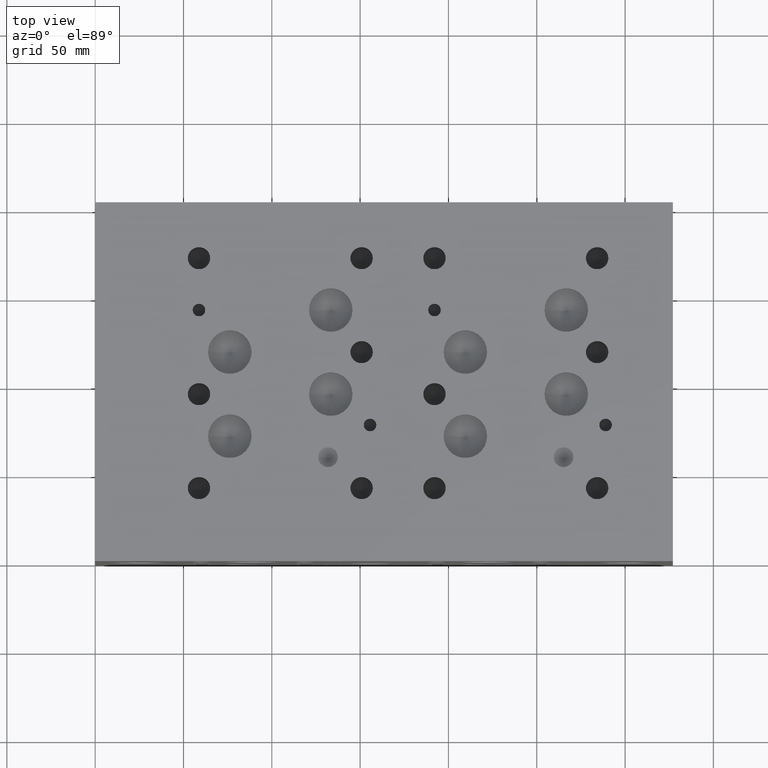
[diagram: clean part render]
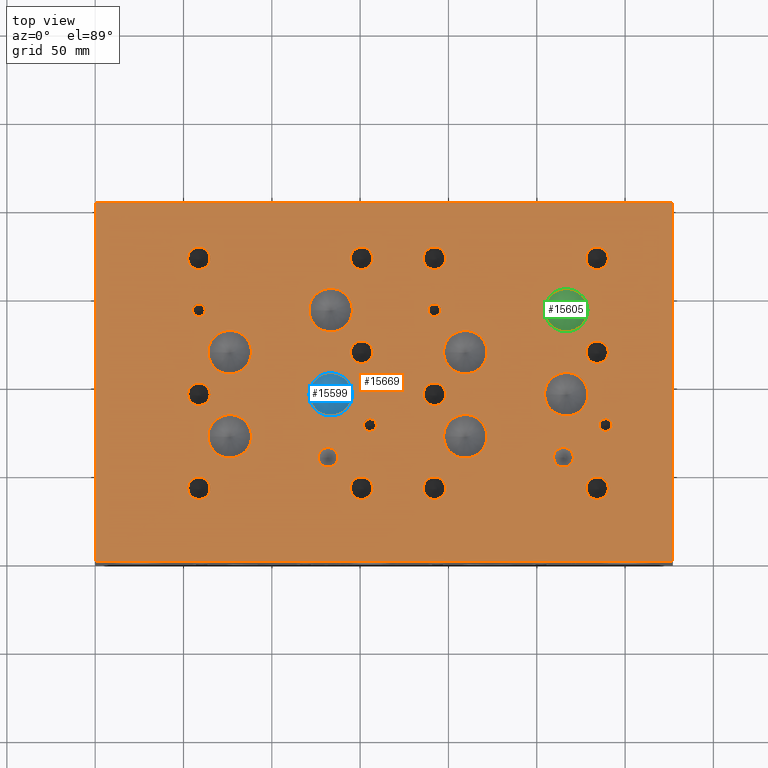
[diagram: same view with three faces highlighted in distinct colors, each labeled with its STEP entity id]
A machine part, top view with three faces highlighted in distinct colors.
Their STEP definitions:

[orange] entity #15669 — the highlighted planar face has unit normal (0, 0, 1).
#605=CIRCLE('',#16620,5.5626);
#606=CIRCLE('',#16621,5.5626);
#609=CIRCLE('',#16626,5.5626);
#610=CIRCLE('',#16627,5.5626);
#613=CIRCLE('',#16632,12.3063);
#614=CIRCLE('',#16633,12.3063);
#617=CIRCLE('',#16638,12.3063);
#618=CIRCLE('',#16639,12.3063);
#621=CIRCLE('',#16644,12.3063);
#622=CIRCLE('',#16645,12.3063);
#625=CIRCLE('',#16650,12.3063);
#626=CIRCLE('',#16651,12.3063);
#629=CIRCLE('',#16656,12.3063);
#630=CIRCLE('',#16657,12.3063);
#633=CIRCLE('',#16662,12.3063);
#634=CIRCLE('',#16663,12.3063);
#637=CIRCLE('',#16668,12.3063);
#638=CIRCLE('',#16669,12.3063);
#641=CIRCLE('',#16674,12.3063);
#642=CIRCLE('',#16675,12.3063);
#645=CIRCLE('',#16680,3.5687);
#646=CIRCLE('',#16681,3.5687);
#649=CIRCLE('',#16686,3.5687);
#650=CIRCLE('',#16687,3.5687);
#653=CIRCLE('',#16692,3.5687);
#654=CIRCLE('',#16693,3.5687);
#657=CIRCLE('',#16698,3.5687);
#658=CIRCLE('',#16699,3.5687);
#664=CIRCLE('',#16708,6.35);
#665=CIRCLE('',#16709,6.35);
#671=CIRCLE('',#16719,6.35);
#672=CIRCLE('',#16720,6.35);
#678=CIRCLE('',#16730,6.35);
#679=CIRCLE('',#16731,6.35);
#685=CIRCLE('',#16741,6.35);
#686=CIRCLE('',#16742,6.35);
#692=CIRCLE('',#16752,6.35);
#693=CIRCLE('',#16753,6.35);
#699=CIRCLE('',#16763,6.35);
#700=CIRCLE('',#16764,6.35);
#706=CIRCLE('',#16774,6.35);
#707=CIRCLE('',#16775,6.35);
#713=CIRCLE('',#16785,6.35);
#714=CIRCLE('',#16786,6.35);
#720=CIRCLE('',#16796,6.35);
#721=CIRCLE('',#16797,6.35);
#727=CIRCLE('',#16807,6.35);
#728=CIRCLE('',#16808,6.35);
#734=CIRCLE('',#16818,6.35);
#735=CIRCLE('',#16819,6.35);
#741=CIRCLE('',#16829,6.35);
#742=CIRCLE('',#16830,6.35);
#899=FACE_BOUND('',#3201,.T.);
#900=FACE_BOUND('',#3202,.T.);
#901=FACE_BOUND('',#3203,.T.);
#902=FACE_BOUND('',#3204,.T.);
#903=FACE_BOUND('',#3205,.T.);
#904=FACE_BOUND('',#3206,.T.);
#905=FACE_BOUND('',#3207,.T.);
#906=FACE_BOUND('',#3208,.T.);
#907=FACE_BOUND('',#3209,.T.);
#908=FACE_BOUND('',#3210,.T.);
#909=FACE_BOUND('',#3211,.T.);
#910=FACE_BOUND('',#3212,.T.);
#911=FACE_BOUND('',#3213,.T.);
#912=FACE_BOUND('',#3214,.T.);
#913=FACE_BOUND('',#3215,.T.);
#914=FACE_BOUND('',#3216,.T.);
#915=FACE_BOUND('',#3217,.T.);
#916=FACE_BOUND('',#3218,.T.);
#917=FACE_BOUND('',#3219,.T.);
#918=FACE_BOUND('',#3220,.T.);
#919=FACE_BOUND('',#3221,.T.);
#920=FACE_BOUND('',#3222,.T.);
#921=FACE_BOUND('',#3223,.T.);
#922=FACE_BOUND('',#3224,.T.);
#923=FACE_BOUND('',#3225,.T.);
#924=FACE_BOUND('',#3226,.T.);
#2231=FACE_OUTER_BOUND('',#3200,.T.);
#3200=EDGE_LOOP('',(#13865,#13866,#13867,#13868));
#3201=EDGE_LOOP('',(#13869,#13870));
#3202=EDGE_LOOP('',(#13871,#13872));
#3203=EDGE_LOOP('',(#13873,#13874));
#3204=EDGE_LOOP('',(#13875,#13876));
#3205=EDGE_LOOP('',(#13877,#13878));
#3206=EDGE_LOOP('',(#13879,#13880));
#3207=EDGE_LOOP('',(#13881,#13882));
#3208=EDGE_LOOP('',(#13883,#13884));
#3209=EDGE_LOOP('',(#13885,#13886));
#3210=EDGE_LOOP('',(#13887,#13888));
#3211=EDGE_LOOP('',(#13889,#13890));
#3212=EDGE_LOOP('',(#13891,#13892));
#3213=EDGE_LOOP('',(#13893,#13894));
#3214=EDGE_LOOP('',(#13895,#13896));
#3215=EDGE_LOOP('',(#13897,#13898));
#3216=EDGE_LOOP('',(#13899,#13900));
#3217=EDGE_LOOP('',(#13901,#13902));
#3218=EDGE_LOOP('',(#13903,#13904));
#3219=EDGE_LOOP('',(#13905,#13906));
#3220=EDGE_LOOP('',(#13907,#13908));
#3221=EDGE_LOOP('',(#13909,#13910));
#3222=EDGE_LOOP('',(#13911,#13912));
#3223=EDGE_LOOP('',(#13913,#13914));
#3224=EDGE_LOOP('',(#13915,#13916));
#3225=EDGE_LOOP('',(#13917,#13918));
#3226=EDGE_LOOP('',(#13919,#13920));
#3560=LINE('',#22840,#4891);
#4249=LINE('',#25328,#5580);
#4307=LINE('',#25631,#5638);
#4558=LINE('',#27134,#5889);
#4891=VECTOR('',#17352,10.);
#5580=VECTOR('',#18619,10.);
#5638=VECTOR('',#18763,10.);
#5889=VECTOR('',#20468,10.);
#6244=VERTEX_POINT('',#22837);
#6245=VERTEX_POINT('',#22839);
#6827=VERTEX_POINT('',#25326);
#6901=VERTEX_POINT('',#25630);
#7264=VERTEX_POINT('',#26693);
#7265=VERTEX_POINT('',#26694);
#7269=VERTEX_POINT('',#26706);
#7270=VERTEX_POINT('',#26707);
#7274=VERTEX_POINT('',#26719);
#7275=VERTEX_POINT('',#26720);
#7279=VERTEX_POINT('',#26732);
#7280=VERTEX_POINT('',#26733);
#7284=VERTEX_POINT('',#26745);
#7285=VERTEX_POINT('',#26746);
#7289=VERTEX_POINT('',#26758);
#7290=VERTEX_POINT('',#26759);
#7294=VERTEX_POINT('',#26771);
#7295=VERTEX_POINT('',#26772);
#7299=VERTEX_POINT('',#26784);
#7300=VERTEX_POINT('',#26785);
#7304=VERTEX_POINT('',#26797);
#7305=VERTEX_POINT('',#26798);
#7309=VERTEX_POINT('',#26810);
#7310=VERTEX_POINT('',#26811);
#7314=VERTEX_POINT('',#26823);
#7315=VERTEX_POINT('',#26824);
#7319=VERTEX_POINT('',#26836);
#7320=VERTEX_POINT('',#26837);
#7324=VERTEX_POINT('',#26849);
#7325=VERTEX_POINT('',#26850);
#7329=VERTEX_POINT('',#26862);
#7330=VERTEX_POINT('',#26863);
#7337=VERTEX_POINT('',#26882);
#7338=VERTEX_POINT('',#26883);
#7345=VERTEX_POINT('',#26904);
#7346=VERTEX_POINT('',#26905);
#7353=VERTEX_POINT('',#26926);
#7354=VERTEX_POINT('',#26927);
#7361=VERTEX_POINT('',#26948);
#7362=VERTEX_POINT('',#26949);
#7369=VERTEX_POINT('',#26970);
#7370=VERTEX_POINT('',#26971);
#7377=VERTEX_POINT('',#26992);
#7378=VERTEX_POINT('',#26993);
#7385=VERTEX_POINT('',#27014);
#7386=VERTEX_POINT('',#27015);
#7393=VERTEX_POINT('',#27036);
#7394=VERTEX_POINT('',#27037);
#7401=VERTEX_POINT('',#27058);
#7402=VERTEX_POINT('',#27059);
#7409=VERTEX_POINT('',#27080);
#7410=VERTEX_POINT('',#27081);
#7417=VERTEX_POINT('',#27102);
#7418=VERTEX_POINT('',#27103);
#7425=VERTEX_POINT('',#27124);
#7426=VERTEX_POINT('',#27125);
#7957=EDGE_CURVE('',#6245,#6244,#3560,.T.);
#8808=EDGE_CURVE('',#6244,#6827,#4249,.T.);
#8906=EDGE_CURVE('',#6901,#6245,#4307,.T.);
#9390=EDGE_CURVE('',#7264,#7265,#605,.T.);
#9391=EDGE_CURVE('',#7265,#7264,#606,.T.);
#9396=EDGE_CURVE('',#7269,#7270,#609,.T.);
#9397=EDGE_CURVE('',#7270,#7269,#610,.T.);
#9402=EDGE_CURVE('',#7274,#7275,#613,.T.);
#9403=EDGE_CURVE('',#7275,#7274,#614,.T.);
#9408=EDGE_CURVE('',#7279,#7280,#617,.T.);
#9409=EDGE_CURVE('',#7280,#7279,#618,.T.);
#9414=EDGE_CURVE('',#7284,#7285,#621,.T.);
#9415=EDGE_CURVE('',#7285,#7284,#622,.T.);
#9420=EDGE_CURVE('',#7289,#7290,#625,.T.);
#9421=EDGE_CURVE('',#7290,#7289,#626,.T.);
#9426=EDGE_CURVE('',#7294,#7295,#629,.T.);
#9427=EDGE_CURVE('',#7295,#7294,#630,.T.);
#9432=EDGE_CURVE('',#7299,#7300,#633,.T.);
#9433=EDGE_CURVE('',#7300,#7299,#634,.T.);
#9438=EDGE_CURVE('',#7304,#7305,#637,.T.);
#9439=EDGE_CURVE('',#7305,#7304,#638,.T.);
#9444=EDGE_CURVE('',#7309,#7310,#641,.T.);
#9445=EDGE_CURVE('',#7310,#7309,#642,.T.);
#9450=EDGE_CURVE('',#7314,#7315,#645,.T.);
#9451=EDGE_CURVE('',#7315,#7314,#646,.T.);
#9456=EDGE_CURVE('',#7319,#7320,#649,.T.);
#9457=EDGE_CURVE('',#7320,#7319,#650,.T.);
#9462=EDGE_CURVE('',#7324,#7325,#653,.T.);
#9463=EDGE_CURVE('',#7325,#7324,#654,.T.);
#9468=EDGE_CURVE('',#7329,#7330,#657,.T.);
#9469=EDGE_CURVE('',#7330,#7329,#658,.T.);
#9477=EDGE_CURVE('',#7337,#7338,#664,.T.);
#9478=EDGE_CURVE('',#7338,#7337,#665,.T.);
#9487=EDGE_CURVE('',#7345,#7346,#671,.T.);
#9488=EDGE_CURVE('',#7346,#7345,#672,.T.);
#9497=EDGE_CURVE('',#7353,#7354,#678,.T.);
#9498=EDGE_CURVE('',#7354,#7353,#679,.T.);
#9507=EDGE_CURVE('',#7361,#7362,#685,.T.);
#9508=EDGE_CURVE('',#7362,#7361,#686,.T.);
#9517=EDGE_CURVE('',#7369,#7370,#692,.T.);
#9518=EDGE_CURVE('',#7370,#7369,#693,.T.);
#9527=EDGE_CURVE('',#7377,#7378,#699,.T.);
#9528=EDGE_CURVE('',#7378,#7377,#700,.T.);
#9537=EDGE_CURVE('',#7385,#7386,#706,.T.);
#9538=EDGE_CURVE('',#7386,#7385,#707,.T.);
#9547=EDGE_CURVE('',#7393,#7394,#713,.T.);
#9548=EDGE_CURVE('',#7394,#7393,#714,.T.);
#9557=EDGE_CURVE('',#7401,#7402,#720,.T.);
#9558=EDGE_CURVE('',#7402,#7401,#721,.T.);
#9567=EDGE_CURVE('',#7409,#7410,#727,.T.);
#9568=EDGE_CURVE('',#7410,#7409,#728,.T.);
#9577=EDGE_CURVE('',#7417,#7418,#734,.T.);
#9578=EDGE_CURVE('',#7418,#7417,#735,.T.);
#9587=EDGE_CURVE('',#7425,#7426,#741,.T.);
#9588=EDGE_CURVE('',#7426,#7425,#742,.T.);
#9592=EDGE_CURVE('',#6827,#6901,#4558,.T.);
#13865=ORIENTED_EDGE('',*,*,#7957,.T.);
#13866=ORIENTED_EDGE('',*,*,#8808,.T.);
#13867=ORIENTED_EDGE('',*,*,#9592,.T.);
#13868=ORIENTED_EDGE('',*,*,#8906,.T.);
#13869=ORIENTED_EDGE('',*,*,#9390,.T.);
#13870=ORIENTED_EDGE('',*,*,#9391,.T.);
#13871=ORIENTED_EDGE('',*,*,#9396,.T.);
#13872=ORIENTED_EDGE('',*,*,#9397,.T.);
#13873=ORIENTED_EDGE('',*,*,#9402,.T.);
#13874=ORIENTED_EDGE('',*,*,#9403,.T.);
#13875=ORIENTED_EDGE('',*,*,#9408,.T.);
#13876=ORIENTED_EDGE('',*,*,#9409,.T.);
#13877=ORIENTED_EDGE('',*,*,#9414,.T.);
#13878=ORIENTED_EDGE('',*,*,#9415,.T.);
#13879=ORIENTED_EDGE('',*,*,#9420,.T.);
#13880=ORIENTED_EDGE('',*,*,#9421,.T.);
#13881=ORIENTED_EDGE('',*,*,#9426,.T.);
#13882=ORIENTED_EDGE('',*,*,#9427,.T.);
#13883=ORIENTED_EDGE('',*,*,#9432,.T.);
#13884=ORIENTED_EDGE('',*,*,#9433,.T.);
#13885=ORIENTED_EDGE('',*,*,#9438,.T.);
#13886=ORIENTED_EDGE('',*,*,#9439,.T.);
#13887=ORIENTED_EDGE('',*,*,#9444,.T.);
#13888=ORIENTED_EDGE('',*,*,#9445,.T.);
#13889=ORIENTED_EDGE('',*,*,#9450,.T.);
#13890=ORIENTED_EDGE('',*,*,#9451,.T.);
#13891=ORIENTED_EDGE('',*,*,#9456,.T.);
#13892=ORIENTED_EDGE('',*,*,#9457,.T.);
#13893=ORIENTED_EDGE('',*,*,#9462,.T.);
#13894=ORIENTED_EDGE('',*,*,#9463,.T.);
#13895=ORIENTED_EDGE('',*,*,#9468,.T.);
#13896=ORIENTED_EDGE('',*,*,#9469,.T.);
#13897=ORIENTED_EDGE('',*,*,#9477,.T.);
#13898=ORIENTED_EDGE('',*,*,#9478,.T.);
#13899=ORIENTED_EDGE('',*,*,#9487,.T.);
#13900=ORIENTED_EDGE('',*,*,#9488,.T.);
#13901=ORIENTED_EDGE('',*,*,#9497,.T.);
#13902=ORIENTED_EDGE('',*,*,#9498,.T.);
#13903=ORIENTED_EDGE('',*,*,#9507,.T.);
#13904=ORIENTED_EDGE('',*,*,#9508,.T.);
#13905=ORIENTED_EDGE('',*,*,#9517,.T.);
#13906=ORIENTED_EDGE('',*,*,#9518,.T.);
#13907=ORIENTED_EDGE('',*,*,#9527,.T.);
#13908=ORIENTED_EDGE('',*,*,#9528,.T.);
#13909=ORIENTED_EDGE('',*,*,#9537,.T.);
#13910=ORIENTED_EDGE('',*,*,#9538,.T.);
#13911=ORIENTED_EDGE('',*,*,#9547,.T.);
#13912=ORIENTED_EDGE('',*,*,#9548,.T.);
#13913=ORIENTED_EDGE('',*,*,#9557,.T.);
#13914=ORIENTED_EDGE('',*,*,#9558,.T.);
#13915=ORIENTED_EDGE('',*,*,#9567,.T.);
#13916=ORIENTED_EDGE('',*,*,#9568,.T.);
#13917=ORIENTED_EDGE('',*,*,#9577,.T.);
#13918=ORIENTED_EDGE('',*,*,#9578,.T.);
#13919=ORIENTED_EDGE('',*,*,#9587,.T.);
#13920=ORIENTED_EDGE('',*,*,#9588,.T.);
#14347=PLANE('',#16836);
#15669=ADVANCED_FACE('',(#2231,#899,#900,#901,#902,#903,#904,#905,#906,
#907,#908,#909,#910,#911,#912,#913,#914,#915,#916,#917,#918,#919,#920,#921,
#922,#923,#924),#14347,.T.);
#16620=AXIS2_PLACEMENT_3D('',#26695,#19976,#19977);
#16621=AXIS2_PLACEMENT_3D('',#26696,#19978,#19979);
#16626=AXIS2_PLACEMENT_3D('',#26708,#19990,#19991);
#16627=AXIS2_PLACEMENT_3D('',#26709,#19992,#19993);
#16632=AXIS2_PLACEMENT_3D('',#26721,#20004,#20005);
#16633=AXIS2_PLACEMENT_3D('',#26722,#20006,#20007);
#16638=AXIS2_PLACEMENT_3D('',#26734,#20018,#20019);
#16639=AXIS2_PLACEMENT_3D('',#26735,#20020,#20021);
#16644=AXIS2_PLACEMENT_3D('',#26747,#20032,#20033);
#16645=AXIS2_PLACEMENT_3D('',#26748,#20034,#20035);
#16650=AXIS2_PLACEMENT_3D('',#26760,#20046,#20047);
#16651=AXIS2_PLACEMENT_3D('',#26761,#20048,#20049);
#16656=AXIS2_PLACEMENT_3D('',#26773,#20060,#20061);
#16657=AXIS2_PLACEMENT_3D('',#26774,#20062,#20063);
#16662=AXIS2_PLACEMENT_3D('',#26786,#20074,#20075);
#16663=AXIS2_PLACEMENT_3D('',#26787,#20076,#20077);
#16668=AXIS2_PLACEMENT_3D('',#26799,#20088,#20089);
#16669=AXIS2_PLACEMENT_3D('',#26800,#20090,#20091);
#16674=AXIS2_PLACEMENT_3D('',#26812,#20102,#20103);
#16675=AXIS2_PLACEMENT_3D('',#26813,#20104,#20105);
#16680=AXIS2_PLACEMENT_3D('',#26825,#20116,#20117);
#16681=AXIS2_PLACEMENT_3D('',#26826,#20118,#20119);
#16686=AXIS2_PLACEMENT_3D('',#26838,#20130,#20131);
#16687=AXIS2_PLACEMENT_3D('',#26839,#20132,#20133);
#16692=AXIS2_PLACEMENT_3D('',#26851,#20144,#20145);
#16693=AXIS2_PLACEMENT_3D('',#26852,#20146,#20147);
#16698=AXIS2_PLACEMENT_3D('',#26864,#20158,#20159);
#16699=AXIS2_PLACEMENT_3D('',#26865,#20160,#20161);
#16708=AXIS2_PLACEMENT_3D('',#26884,#20180,#20181);
#16709=AXIS2_PLACEMENT_3D('',#26885,#20182,#20183);
#16719=AXIS2_PLACEMENT_3D('',#26906,#20205,#20206);
#16720=AXIS2_PLACEMENT_3D('',#26907,#20207,#20208);
#16730=AXIS2_PLACEMENT_3D('',#26928,#20230,#20231);
#16731=AXIS2_PLACEMENT_3D('',#26929,#20232,#20233);
#16741=AXIS2_PLACEMENT_3D('',#26950,#20255,#20256);
#16742=AXIS2_PLACEMENT_3D('',#26951,#20257,#20258);
#16752=AXIS2_PLACEMENT_3D('',#26972,#20280,#20281);
#16753=AXIS2_PLACEMENT_3D('',#26973,#20282,#20283);
#16763=AXIS2_PLACEMENT_3D('',#26994,#20305,#20306);
#16764=AXIS2_PLACEMENT_3D('',#26995,#20307,#20308);
#16774=AXIS2_PLACEMENT_3D('',#27016,#20330,#20331);
#16775=AXIS2_PLACEMENT_3D('',#27017,#20332,#20333);
#16785=AXIS2_PLACEMENT_3D('',#27038,#20355,#20356);
#16786=AXIS2_PLACEMENT_3D('',#27039,#20357,#20358);
#16796=AXIS2_PLACEMENT_3D('',#27060,#20380,#20381);
#16797=AXIS2_PLACEMENT_3D('',#27061,#20382,#20383);
#16807=AXIS2_PLACEMENT_3D('',#27082,#20405,#20406);
#16808=AXIS2_PLACEMENT_3D('',#27083,#20407,#20408);
#16818=AXIS2_PLACEMENT_3D('',#27104,#20430,#20431);
#16819=AXIS2_PLACEMENT_3D('',#27105,#20432,#20433);
#16829=AXIS2_PLACEMENT_3D('',#27126,#20455,#20456);
#16830=AXIS2_PLACEMENT_3D('',#27127,#20457,#20458);
#16836=AXIS2_PLACEMENT_3D('',#27137,#20473,#20474);
#17352=DIRECTION('',(1.,0.,0.));
#18619=DIRECTION('',(0.,1.,0.));
#18763=DIRECTION('',(0.,-1.,0.));
#19976=DIRECTION('center_axis',(0.,0.,-1.));
#19977=DIRECTION('ref_axis',(1.,0.,0.));
#19978=DIRECTION('center_axis',(0.,0.,-1.));
#19979=DIRECTION('ref_axis',(1.,0.,0.));
#19990=DIRECTION('center_axis',(0.,0.,-1.));
#19991=DIRECTION('ref_axis',(1.,0.,0.));
#19992=DIRECTION('center_axis',(0.,0.,-1.));
#19993=DIRECTION('ref_axis',(1.,0.,0.));
#20004=DIRECTION('center_axis',(0.,0.,-1.));
#20005=DIRECTION('ref_axis',(1.,0.,0.));
#20006=DIRECTION('center_axis',(0.,0.,-1.));
#20007=DIRECTION('ref_axis',(1.,0.,0.));
#20018=DIRECTION('center_axis',(0.,0.,-1.));
#20019=DIRECTION('ref_axis',(1.,0.,0.));
#20020=DIRECTION('center_axis',(0.,0.,-1.));
#20021=DIRECTION('ref_axis',(1.,0.,0.));
#20032=DIRECTION('center_axis',(0.,0.,-1.));
#20033=DIRECTION('ref_axis',(1.,0.,0.));
#20034=DIRECTION('center_axis',(0.,0.,-1.));
#20035=DIRECTION('ref_axis',(1.,0.,0.));
#20046=DIRECTION('center_axis',(0.,0.,-1.));
#20047=DIRECTION('ref_axis',(1.,0.,0.));
#20048=DIRECTION('center_axis',(0.,0.,-1.));
#20049=DIRECTION('ref_axis',(1.,0.,0.));
#20060=DIRECTION('center_axis',(0.,0.,-1.));
#20061=DIRECTION('ref_axis',(1.,0.,0.));
#20062=DIRECTION('center_axis',(0.,0.,-1.));
#20063=DIRECTION('ref_axis',(1.,0.,0.));
#20074=DIRECTION('center_axis',(0.,0.,-1.));
#20075=DIRECTION('ref_axis',(1.,0.,0.));
#20076=DIRECTION('center_axis',(0.,0.,-1.));
#20077=DIRECTION('ref_axis',(1.,0.,0.));
#20088=DIRECTION('center_axis',(0.,0.,-1.));
#20089=DIRECTION('ref_axis',(1.,0.,0.));
#20090=DIRECTION('center_axis',(0.,0.,-1.));
#20091=DIRECTION('ref_axis',(1.,0.,0.));
#20102=DIRECTION('center_axis',(0.,0.,-1.));
#20103=DIRECTION('ref_axis',(1.,0.,0.));
#20104=DIRECTION('center_axis',(0.,0.,-1.));
#20105=DIRECTION('ref_axis',(1.,0.,0.));
#20116=DIRECTION('center_axis',(0.,0.,-1.));
#20117=DIRECTION('ref_axis',(1.,0.,0.));
#20118=DIRECTION('center_axis',(0.,0.,-1.));
#20119=DIRECTION('ref_axis',(1.,0.,0.));
#20130=DIRECTION('center_axis',(0.,0.,-1.));
#20131=DIRECTION('ref_axis',(1.,0.,0.));
#20132=DIRECTION('center_axis',(0.,0.,-1.));
#20133=DIRECTION('ref_axis',(1.,0.,0.));
#20144=DIRECTION('center_axis',(0.,0.,-1.));
#20145=DIRECTION('ref_axis',(1.,0.,0.));
#20146=DIRECTION('center_axis',(0.,0.,-1.));
#20147=DIRECTION('ref_axis',(1.,0.,0.));
#20158=DIRECTION('center_axis',(0.,0.,-1.));
#20159=DIRECTION('ref_axis',(1.,0.,0.));
#20160=DIRECTION('center_axis',(0.,0.,-1.));
#20161=DIRECTION('ref_axis',(1.,0.,0.));
#20180=DIRECTION('center_axis',(0.,0.,-1.));
#20181=DIRECTION('ref_axis',(1.,0.,0.));
#20182=DIRECTION('center_axis',(0.,0.,-1.));
#20183=DIRECTION('ref_axis',(1.,0.,0.));
#20205=DIRECTION('center_axis',(0.,0.,-1.));
#20206=DIRECTION('ref_axis',(1.,0.,0.));
#20207=DIRECTION('center_axis',(0.,0.,-1.));
#20208=DIRECTION('ref_axis',(1.,0.,0.));
#20230=DIRECTION('center_axis',(0.,0.,-1.));
#20231=DIRECTION('ref_axis',(1.,0.,0.));
#20232=DIRECTION('center_axis',(0.,0.,-1.));
#20233=DIRECTION('ref_axis',(1.,0.,0.));
#20255=DIRECTION('center_axis',(0.,0.,-1.));
#20256=DIRECTION('ref_axis',(1.,0.,0.));
#20257=DIRECTION('center_axis',(0.,0.,-1.));
#20258=DIRECTION('ref_axis',(1.,0.,0.));
#20280=DIRECTION('center_axis',(0.,0.,-1.));
#20281=DIRECTION('ref_axis',(1.,0.,0.));
#20282=DIRECTION('center_axis',(0.,0.,-1.));
#20283=DIRECTION('ref_axis',(1.,0.,0.));
#20305=DIRECTION('center_axis',(0.,0.,-1.));
#20306=DIRECTION('ref_axis',(1.,0.,0.));
#20307=DIRECTION('center_axis',(0.,0.,-1.));
#20308=DIRECTION('ref_axis',(1.,0.,0.));
#20330=DIRECTION('center_axis',(0.,0.,-1.));
#20331=DIRECTION('ref_axis',(1.,0.,0.));
#20332=DIRECTION('center_axis',(0.,0.,-1.));
#20333=DIRECTION('ref_axis',(1.,0.,0.));
#20355=DIRECTION('center_axis',(0.,0.,-1.));
#20356=DIRECTION('ref_axis',(1.,0.,0.));
#20357=DIRECTION('center_axis',(0.,0.,-1.));
#20358=DIRECTION('ref_axis',(1.,0.,0.));
#20380=DIRECTION('center_axis',(0.,0.,-1.));
#20381=DIRECTION('ref_axis',(1.,0.,0.));
#20382=DIRECTION('center_axis',(0.,0.,-1.));
#20383=DIRECTION('ref_axis',(1.,0.,0.));
#20405=DIRECTION('center_axis',(0.,0.,-1.));
#20406=DIRECTION('ref_axis',(1.,0.,0.));
#20407=DIRECTION('center_axis',(0.,0.,-1.));
#20408=DIRECTION('ref_axis',(1.,0.,0.));
#20430=DIRECTION('center_axis',(0.,0.,-1.));
#20431=DIRECTION('ref_axis',(1.,0.,0.));
#20432=DIRECTION('center_axis',(0.,0.,-1.));
#20433=DIRECTION('ref_axis',(1.,0.,0.));
#20455=DIRECTION('center_axis',(0.,0.,-1.));
#20456=DIRECTION('ref_axis',(1.,0.,0.));
#20457=DIRECTION('center_axis',(0.,0.,-1.));
#20458=DIRECTION('ref_axis',(1.,0.,0.));
#20468=DIRECTION('',(-1.,0.,0.));
#20473=DIRECTION('center_axis',(0.,0.,1.));
#20474=DIRECTION('ref_axis',(1.,0.,0.));
#22837=CARTESIAN_POINT('',(327.025,0.,152.4));
#22839=CARTESIAN_POINT('',(0.,0.,152.4));
#22840=CARTESIAN_POINT('',(0.,0.,152.4));
#25326=CARTESIAN_POINT('',(327.025,203.2,152.4));
#25328=CARTESIAN_POINT('',(327.025,0.,152.4));
#25630=CARTESIAN_POINT('',(0.,203.2,152.4));
#25631=CARTESIAN_POINT('',(0.,203.2,152.4));
#26693=CARTESIAN_POINT('',(137.3251,58.74512,152.4));
#26694=CARTESIAN_POINT('',(126.1999,58.74512,152.4));
#26695=CARTESIAN_POINT('Origin',(131.7625,58.74512,152.4));
#26696=CARTESIAN_POINT('Origin',(131.7625,58.74512,152.4));
#26706=CARTESIAN_POINT('',(270.6751,58.7502,152.4));
#26707=CARTESIAN_POINT('',(259.5499,58.7502,152.4));
#26708=CARTESIAN_POINT('Origin',(265.1125,58.7502,152.4));
#26709=CARTESIAN_POINT('Origin',(265.1125,58.7502,152.4));
#26719=CARTESIAN_POINT('',(221.8436,118.2878,152.4));
#26720=CARTESIAN_POINT('',(197.231,118.2878,152.4));
#26721=CARTESIAN_POINT('Origin',(209.5373,118.2878,152.4));
#26722=CARTESIAN_POINT('Origin',(209.5373,118.2878,152.4));
#26732=CARTESIAN_POINT('',(278.9936,94.4626,152.4));
#26733=CARTESIAN_POINT('',(254.381,94.4626,152.4));
#26734=CARTESIAN_POINT('Origin',(266.6873,94.4626,152.4));
#26735=CARTESIAN_POINT('Origin',(266.6873,94.4626,152.4));
#26745=CARTESIAN_POINT('',(88.5063,118.2878,152.4));
#26746=CARTESIAN_POINT('',(63.8937,118.2878,152.4));
#26747=CARTESIAN_POINT('Origin',(76.2,118.2878,152.4));
#26748=CARTESIAN_POINT('Origin',(76.2,118.2878,152.4));
#26758=CARTESIAN_POINT('',(145.6563,94.4626,152.4));
#26759=CARTESIAN_POINT('',(121.0437,94.4626,152.4));
#26760=CARTESIAN_POINT('Origin',(133.35,94.4626,152.4));
#26761=CARTESIAN_POINT('Origin',(133.35,94.4626,152.4));
#26771=CARTESIAN_POINT('',(145.6563,142.0876,152.4));
#26772=CARTESIAN_POINT('',(121.0437,142.0876,152.4));
#26773=CARTESIAN_POINT('Origin',(133.35,142.0876,152.4));
#26774=CARTESIAN_POINT('Origin',(133.35,142.0876,152.4));
#26784=CARTESIAN_POINT('',(88.5063,70.6374,152.4));
#26785=CARTESIAN_POINT('',(63.8937,70.6374,152.4));
#26786=CARTESIAN_POINT('Origin',(76.2,70.6374,152.4));
#26787=CARTESIAN_POINT('Origin',(76.2,70.6374,152.4));
#26797=CARTESIAN_POINT('',(278.9936,142.0876,152.4));
#26798=CARTESIAN_POINT('',(254.381,142.0876,152.4));
#26799=CARTESIAN_POINT('Origin',(266.6873,142.0876,152.4));
#26800=CARTESIAN_POINT('Origin',(266.6873,142.0876,152.4));
#26810=CARTESIAN_POINT('',(221.8436,70.6374,152.4));
#26811=CARTESIAN_POINT('',(197.231,70.6374,152.4));
#26812=CARTESIAN_POINT('Origin',(209.5373,70.6374,152.4));
#26813=CARTESIAN_POINT('Origin',(209.5373,70.6374,152.4));
#26823=CARTESIAN_POINT('',(195.6308,142.0876,152.4));
#26824=CARTESIAN_POINT('',(188.4934,142.0876,152.4));
#26825=CARTESIAN_POINT('Origin',(192.0621,142.0876,152.4));
#26826=CARTESIAN_POINT('Origin',(192.0621,142.0876,152.4));
#26836=CARTESIAN_POINT('',(62.2935,142.0876,152.4));
#26837=CARTESIAN_POINT('',(55.1561,142.0876,152.4));
#26838=CARTESIAN_POINT('Origin',(58.7248,142.0876,152.4));
#26839=CARTESIAN_POINT('Origin',(58.7248,142.0876,152.4));
#26849=CARTESIAN_POINT('',(159.1437,77.0128,152.4));
#26850=CARTESIAN_POINT('',(152.0063,77.0128,152.4));
#26851=CARTESIAN_POINT('Origin',(155.575,77.0128,152.4));
#26852=CARTESIAN_POINT('Origin',(155.575,77.0128,152.4));
#26862=CARTESIAN_POINT('',(292.481,77.0128,152.4));
#26863=CARTESIAN_POINT('',(285.3436,77.0128,152.4));
#26864=CARTESIAN_POINT('Origin',(288.9123,77.0128,152.4));
#26865=CARTESIAN_POINT('Origin',(288.9123,77.0128,152.4));
#26882=CARTESIAN_POINT('',(198.4375,41.275,152.4));
#26883=CARTESIAN_POINT('',(185.7375,41.275,152.4));
#26884=CARTESIAN_POINT('Origin',(192.0875,41.275,152.4));
#26885=CARTESIAN_POINT('Origin',(192.0875,41.275,152.4));
#26904=CARTESIAN_POINT('',(290.5125,118.2624,152.4));
#26905=CARTESIAN_POINT('',(277.8125,118.2624,152.4));
#26906=CARTESIAN_POINT('Origin',(284.1625,118.2624,152.4));
#26907=CARTESIAN_POINT('Origin',(284.1625,118.2624,152.4));
#26926=CARTESIAN_POINT('',(198.4121,171.45,152.4));
#26927=CARTESIAN_POINT('',(185.7121,171.45,152.4));
#26928=CARTESIAN_POINT('Origin',(192.0621,171.45,152.4));
#26929=CARTESIAN_POINT('Origin',(192.0621,171.45,152.4));
#26948=CARTESIAN_POINT('',(65.0875,41.28262,152.4));
#26949=CARTESIAN_POINT('',(52.3875,41.28262,152.4));
#26950=CARTESIAN_POINT('Origin',(58.7375,41.28262,152.4));
#26951=CARTESIAN_POINT('Origin',(58.7375,41.28262,152.4));
#26970=CARTESIAN_POINT('',(157.1752,118.2751,152.4));
#26971=CARTESIAN_POINT('',(144.4752,118.2751,152.4));
#26972=CARTESIAN_POINT('Origin',(150.8252,118.2751,152.4));
#26973=CARTESIAN_POINT('Origin',(150.8252,118.2751,152.4));
#26992=CARTESIAN_POINT('',(65.0748,171.45,152.4));
#26993=CARTESIAN_POINT('',(52.3748,171.45,152.4));
#26994=CARTESIAN_POINT('Origin',(58.7248,171.45,152.4));
#26995=CARTESIAN_POINT('Origin',(58.7248,171.45,152.4));
#27014=CARTESIAN_POINT('',(157.1625,171.45508,152.4));
#27015=CARTESIAN_POINT('',(144.4625,171.45508,152.4));
#27016=CARTESIAN_POINT('Origin',(150.8125,171.45508,152.4));
#27017=CARTESIAN_POINT('Origin',(150.8125,171.45508,152.4));
#27036=CARTESIAN_POINT('',(157.1625,41.28262,152.4));
#27037=CARTESIAN_POINT('',(144.4625,41.28262,152.4));
#27038=CARTESIAN_POINT('Origin',(150.8125,41.28262,152.4));
#27039=CARTESIAN_POINT('Origin',(150.8125,41.28262,152.4));
#27058=CARTESIAN_POINT('',(65.1002,94.4626,152.4));
#27059=CARTESIAN_POINT('',(52.4002,94.4626,152.4));
#27060=CARTESIAN_POINT('Origin',(58.7502,94.4626,152.4));
#27061=CARTESIAN_POINT('Origin',(58.7502,94.4626,152.4));
#27080=CARTESIAN_POINT('',(290.5125,171.45,152.4));
#27081=CARTESIAN_POINT('',(277.8125,171.45,152.4));
#27082=CARTESIAN_POINT('Origin',(284.1625,171.45,152.4));
#27083=CARTESIAN_POINT('Origin',(284.1625,171.45,152.4));
#27102=CARTESIAN_POINT('',(290.5125,41.275,152.4));
#27103=CARTESIAN_POINT('',(277.8125,41.275,152.4));
#27104=CARTESIAN_POINT('Origin',(284.1625,41.275,152.4));
#27105=CARTESIAN_POINT('Origin',(284.1625,41.275,152.4));
#27124=CARTESIAN_POINT('',(198.4375,94.4626,152.4));
#27125=CARTESIAN_POINT('',(185.7375,94.4626,152.4));
#27126=CARTESIAN_POINT('Origin',(192.0875,94.4626,152.4));
#27127=CARTESIAN_POINT('Origin',(192.0875,94.4626,152.4));
#27134=CARTESIAN_POINT('',(327.025,203.2,152.4));
#27137=CARTESIAN_POINT('Origin',(163.5125,101.6,152.4));

[blue] entity #15599 — the highlighted conical surface has half-angle 60 deg.
#78=CONICAL_SURFACE('',#16646,6.15315,1.0471975511966);
#623=CIRCLE('',#16647,12.3063);
#624=CIRCLE('',#16648,12.3063);
#2161=FACE_OUTER_BOUND('',#3117,.T.);
#3117=EDGE_LOOP('',(#13532,#13533,#13534,#13535));
#4503=LINE('',#26755,#5834);
#5834=VECTOR('',#20041,6.15315);
#7286=VERTEX_POINT('',#26751);
#7287=VERTEX_POINT('',#26752);
#7288=VERTEX_POINT('',#26754);
#9417=EDGE_CURVE('',#7286,#7287,#623,.T.);
#9418=EDGE_CURVE('',#7287,#7288,#4503,.T.);
#9419=EDGE_CURVE('',#7287,#7286,#624,.T.);
#13532=ORIENTED_EDGE('',*,*,#9417,.T.);
#13533=ORIENTED_EDGE('',*,*,#9418,.T.);
#13534=ORIENTED_EDGE('',*,*,#9418,.F.);
#13535=ORIENTED_EDGE('',*,*,#9419,.T.);
#15599=ADVANCED_FACE('',(#2161),#78,.F.);
#16646=AXIS2_PLACEMENT_3D('',#26750,#20037,#20038);
#16647=AXIS2_PLACEMENT_3D('',#26753,#20039,#20040);
#16648=AXIS2_PLACEMENT_3D('',#26756,#20042,#20043);
#20037=DIRECTION('center_axis',(0.,0.,1.));
#20038=DIRECTION('ref_axis',(1.,0.,0.));
#20039=DIRECTION('center_axis',(0.,0.,1.));
#20040=DIRECTION('ref_axis',(1.,0.,0.));
#20041=DIRECTION('',(0.866025403784439,1.06057523872491E-16,-0.5));
#20042=DIRECTION('center_axis',(0.,0.,1.));
#20043=DIRECTION('ref_axis',(1.,0.,0.));
#26750=CARTESIAN_POINT('Origin',(133.35,94.4626,141.742427191136));
#26751=CARTESIAN_POINT('',(145.6563,94.4626,145.29495));
#26752=CARTESIAN_POINT('',(121.0437,94.4626,145.29495));
#26753=CARTESIAN_POINT('Origin',(133.35,94.4626,145.29495));
#26754=CARTESIAN_POINT('',(133.35,94.4626,138.189904382272));
#26755=CARTESIAN_POINT('',(127.19685,94.4626,141.742427191136));
#26756=CARTESIAN_POINT('Origin',(133.35,94.4626,145.29495));

[green] entity #15605 — the highlighted conical surface has half-angle 60 deg.
#81=CONICAL_SURFACE('',#16664,6.15315,1.0471975511966);
#635=CIRCLE('',#16665,12.3063);
#636=CIRCLE('',#16666,12.3063);
#2167=FACE_OUTER_BOUND('',#3123,.T.);
#3123=EDGE_LOOP('',(#13562,#13563,#13564,#13565));
#4509=LINE('',#26794,#5840);
#5840=VECTOR('',#20083,6.15315);
#7301=VERTEX_POINT('',#26790);
#7302=VERTEX_POINT('',#26791);
#7303=VERTEX_POINT('',#26793);
#9435=EDGE_CURVE('',#7301,#7302,#635,.T.);
#9436=EDGE_CURVE('',#7302,#7303,#4509,.T.);
#9437=EDGE_CURVE('',#7302,#7301,#636,.T.);
#13562=ORIENTED_EDGE('',*,*,#9435,.T.);
#13563=ORIENTED_EDGE('',*,*,#9436,.T.);
#13564=ORIENTED_EDGE('',*,*,#9436,.F.);
#13565=ORIENTED_EDGE('',*,*,#9437,.T.);
#15605=ADVANCED_FACE('',(#2167),#81,.F.);
#16664=AXIS2_PLACEMENT_3D('',#26789,#20079,#20080);
#16665=AXIS2_PLACEMENT_3D('',#26792,#20081,#20082);
#16666=AXIS2_PLACEMENT_3D('',#26795,#20084,#20085);
#20079=DIRECTION('center_axis',(0.,0.,1.));
#20080=DIRECTION('ref_axis',(1.,0.,0.));
#20081=DIRECTION('center_axis',(0.,0.,1.));
#20082=DIRECTION('ref_axis',(1.,0.,0.));
#20083=DIRECTION('',(0.866025403784439,1.06057523872491E-16,-0.5));
#20084=DIRECTION('center_axis',(0.,0.,1.));
#20085=DIRECTION('ref_axis',(1.,0.,0.));
#26789=CARTESIAN_POINT('Origin',(266.6873,142.0876,141.742427191136));
#26790=CARTESIAN_POINT('',(278.9936,142.0876,145.29495));
#26791=CARTESIAN_POINT('',(254.381,142.0876,145.29495));
#26792=CARTESIAN_POINT('Origin',(266.6873,142.0876,145.29495));
#26793=CARTESIAN_POINT('',(266.6873,142.0876,138.189904382272));
#26794=CARTESIAN_POINT('',(260.53415,142.0876,141.742427191136));
#26795=CARTESIAN_POINT('Origin',(266.6873,142.0876,145.29495));